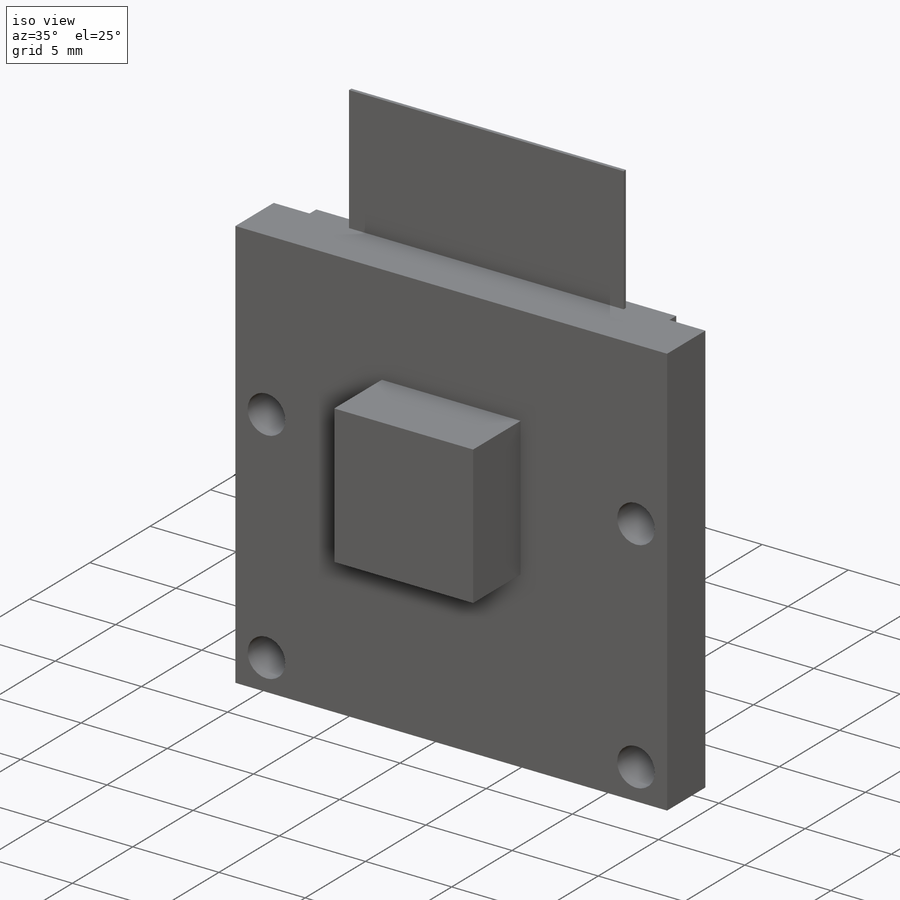
[diagram: iso view]
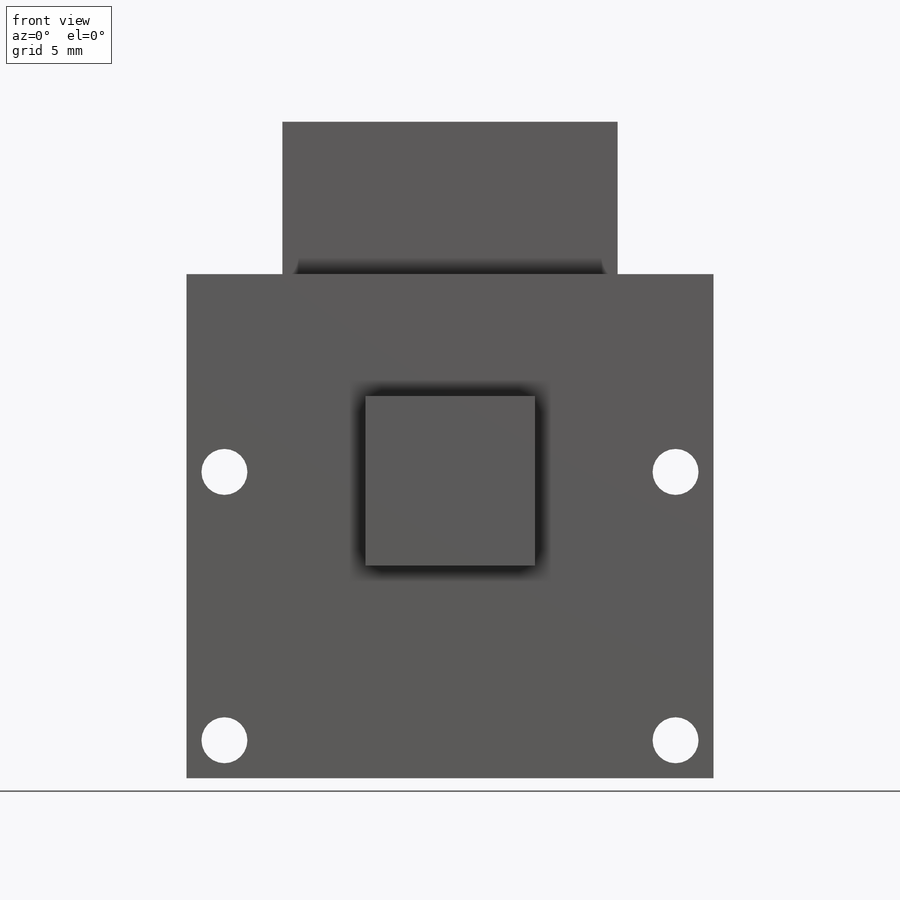
[diagram: front view]
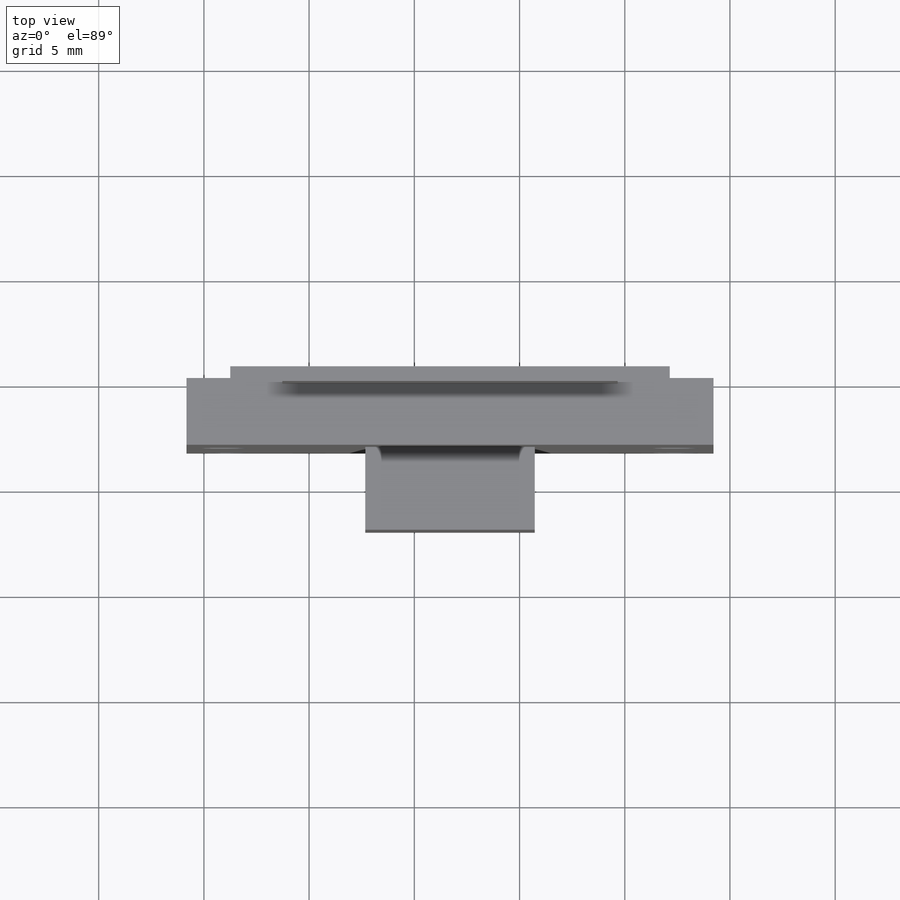
[diagram: top view]
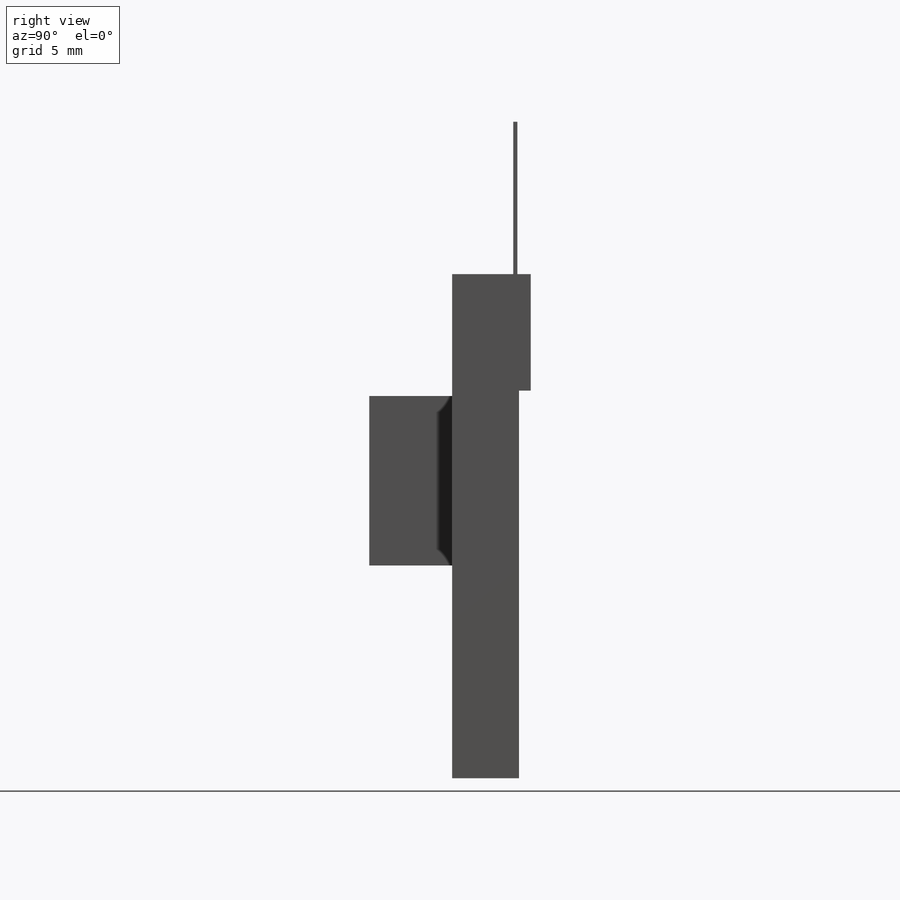
[diagram: right view]
SOLIDWORKS PART (.sldprt)
format: sldprt  version: not decoded by parser v0  size: 181,760 bytes
history: native  units: mm
features: sketch x5, extrude x4, material x1, cut_extrude x1 (+12 scaffold rows collapsed)
feature tree (23):
  scaffold x12  (default folders/planes/origin — collapsed)
  material  "Material <not specified>"
  sketch  "Sketch1"  dims[D1=25.0444mm D2=23.9522mm]
  extrude  "Boss-Extrude1"  Depth=3.175mm
  sketch  "Sketch2"  dims[c1.D1=2.1844mm c1.D3=2.1844mm c1.D4=2.1844mm c2.D1=1.8034mm c2.D2=1.8034mm c2.D3=1.8034mm c2.D4=14.5542mm]
  cut_extrude  "Cut-Extrude1"  Depth=3.175mm
  sketch  "Sketch3"  dims[D1=8.0518mm D2=8.0518mm D3=0.0mm D4=5.7912mm]
  extrude  "Boss-Extrude2"  Depth=3.937mm
  sketch  "Sketch4"  dims[D1=20.8788mm D2=5.5372mm D3=0.0mm]
  extrude  "Boss-Extrude3"  Depth=0.5588mm
  sketch  "Sketch5"  dims[D1=15.9258mm D2=0.0mm D3=0.635mm]
  extrude  "Boss-Extrude4"  Depth=7.239mm
decode coverage: 10 of 10 modeling features carry decoded parameters
note: suppression state not decoded; provenance and decode notes live in map.json
